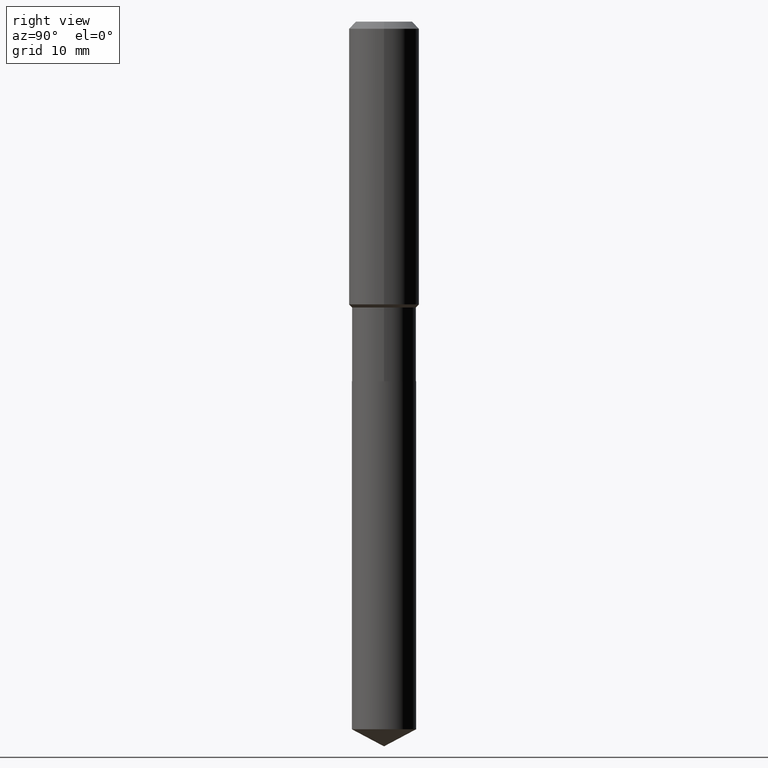
[diagram: clean part render]
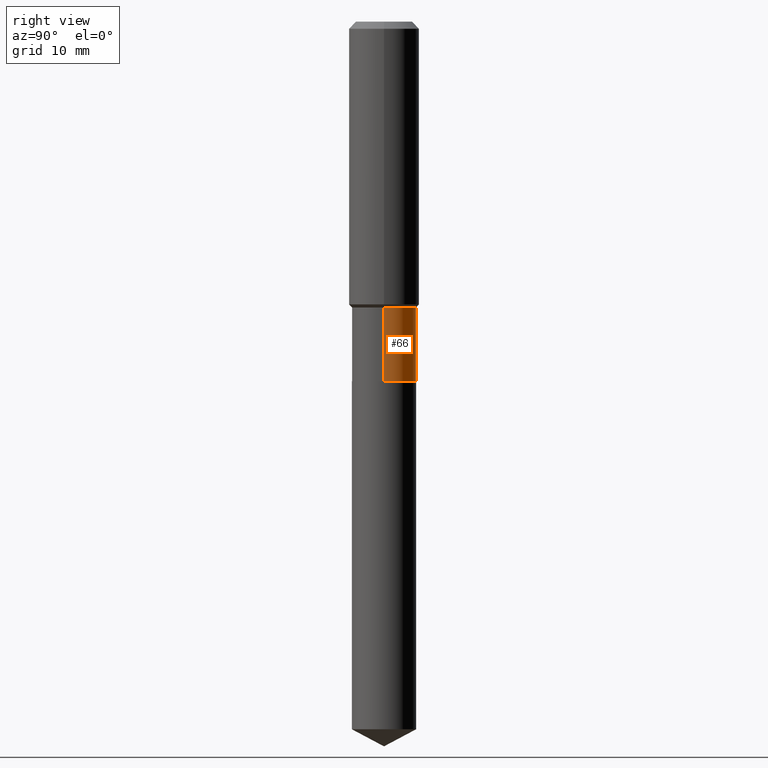
[diagram: same view with one face highlighted and labeled with its STEP entity id]
A machine part, right view. The second image highlights one B-rep face of the part: STEP entity #66.
In plain terms, the highlighted cylindrical surface (edge-blend (fillet) strip) has radius 4.5644 mm, axis along (-0, 0, 1).
Its self-contained STEP definition (entity closure, byte-faithful):
#7 = EDGE_LOOP ( 'NONE', ( #128, #312, #198, #327 ) ) ;
#26 = DIRECTION ( 'NONE',  ( 1.000000000000000000, -6.982962677686267499E-15, 0.000000000000000000 ) ) ;
#41 = LINE ( 'NONE', #127, #354 ) ;
#51 = EDGE_CURVE ( 'NONE', #144, #346, #173, .T. ) ;
#66 = ADVANCED_FACE ( 'NONE', ( #353 ), #394, .T. ) ;
#82 = EDGE_CURVE ( 'NONE', #144, #322, #333, .T. ) ;
#90 = DIRECTION ( 'NONE',  ( -2.445468806185136597E-29, 3.491481338843145583E-15, 1.000000000000000000 ) ) ;
#127 = CARTESIAN_POINT ( 'NONE',  ( -0.1796999999999999986, 1.276845296160900024E-15, -8.839326357188065585E-30 ) ) ;
#128 = ORIENTED_EDGE ( 'NONE', *, *, #82, .T. ) ;
#135 = CARTESIAN_POINT ( 'NONE',  ( 4.920038691163875479E-29, -7.024511305618523739E-15, -2.011899999999999800 ) ) ;
#144 = VERTEX_POINT ( 'NONE', #221 ) ;
#162 = AXIS2_PLACEMENT_3D ( 'NONE', #279, #90, #178 ) ;
#173 = LINE ( 'NONE', #249, #209 ) ;
#178 = DIRECTION ( 'NONE',  ( 1.000000000000000000, -6.982962677686265922E-15, 4.876176775795935232E-29 ) ) ;
#198 = ORIENTED_EDGE ( 'NONE', *, *, #265, .F. ) ;
#209 = VECTOR ( 'NONE', #361, 39.37007874015748143 ) ;
#221 = CARTESIAN_POINT ( 'NONE',  ( 0.1796999999999999986, -8.279349698798745469E-15, -2.011899999999999800 ) ) ;
#239 = CARTESIAN_POINT ( 'NONE',  ( -0.1796999999999999986, -5.027024261120398051E-15, -2.011899999999999800 ) ) ;
#249 = CARTESIAN_POINT ( 'NONE',  ( 0.1796999999999999986, -1.254838393180221928E-15, 8.762489666105295644E-30 ) ) ;
#261 = EDGE_CURVE ( 'NONE', #322, #383, #41, .T. ) ;
#265 = EDGE_CURVE ( 'NONE', #346, #383, #404, .T. ) ;
#269 = DIRECTION ( 'NONE',  ( 1.000000000000000000, -6.982962677686269077E-15, 0.000000000000000000 ) ) ;
#279 = CARTESIAN_POINT ( 'NONE',  ( 0.000000000000000000, 0.000000000000000000, 0.000000000000000000 ) ) ;
#281 = CARTESIAN_POINT ( 'NONE',  ( 0.1796999999999999709, -6.838066202124294536E-15, -1.599099999999999522 ) ) ;
#307 = CARTESIAN_POINT ( 'NONE',  ( 3.910549167970651288E-29, -5.583227808944072017E-15, -1.599099999999999522 ) ) ;
#312 = ORIENTED_EDGE ( 'NONE', *, *, #261, .T. ) ;
#322 = VERTEX_POINT ( 'NONE', #239 ) ;
#327 = ORIENTED_EDGE ( 'NONE', *, *, #51, .F. ) ;
#333 = CIRCLE ( 'NONE', #445, 0.1796999999999999986 ) ;
#346 = VERTEX_POINT ( 'NONE', #281 ) ;
#353 = FACE_OUTER_BOUND ( 'NONE', #7, .T. ) ;
#354 = VECTOR ( 'NONE', #381, 39.37007874015748143 ) ;
#358 = CARTESIAN_POINT ( 'NONE',  ( -0.1796999999999999709, -5.027024261120398051E-15, -1.599099999999999522 ) ) ;
#361 = DIRECTION ( 'NONE',  ( -2.445468806185136877E-29, 3.491481338843145188E-15, 1.000000000000000000 ) ) ;
#378 = AXIS2_PLACEMENT_3D ( 'NONE', #307, #389, #269 ) ;
#381 = DIRECTION ( 'NONE',  ( -2.445468806185136877E-29, 3.491481338843145188E-15, 1.000000000000000000 ) ) ;
#383 = VERTEX_POINT ( 'NONE', #358 ) ;
#389 = DIRECTION ( 'NONE',  ( -2.445468806185136597E-29, 3.491481338843145583E-15, 1.000000000000000000 ) ) ;
#392 = DIRECTION ( 'NONE',  ( -2.445468806185136597E-29, 3.491481338843145583E-15, 1.000000000000000000 ) ) ;
#394 = CYLINDRICAL_SURFACE ( 'NONE', #162, 0.1796999999999999986 ) ;
#404 = CIRCLE ( 'NONE', #378, 0.1796999999999999709 ) ;
#445 = AXIS2_PLACEMENT_3D ( 'NONE', #135, #392, #26 ) ;